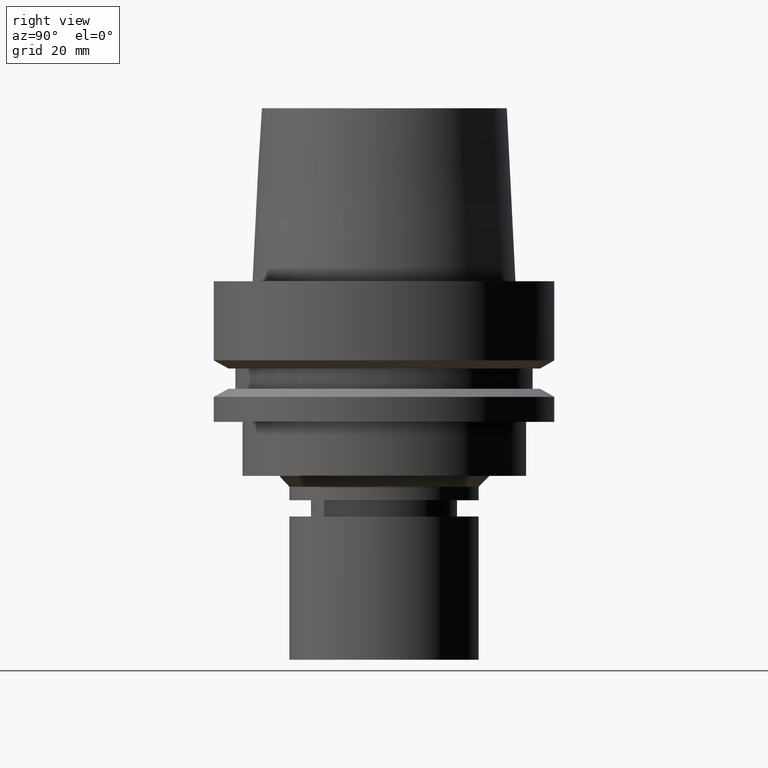
[diagram: clean part render]
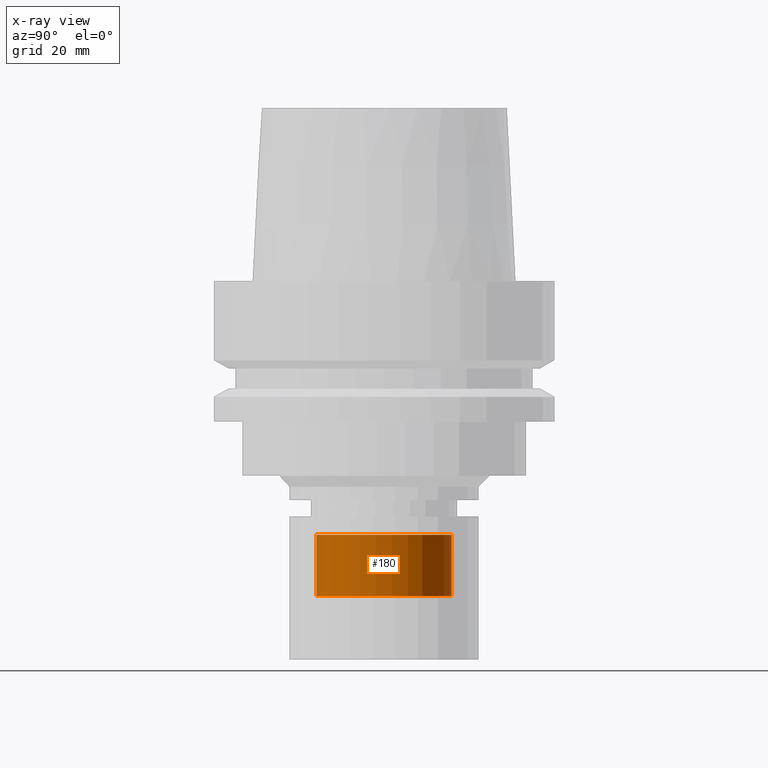
[diagram: x-ray — body ghosted, one internal face saturated and labeled with its STEP entity id]
A machine part, right view, then the same camera in x-ray: the body is ghosted and one INTERNAL B-rep face — a face not visible from any outside direction — is saturated and labeled: STEP entity #180.
In plain terms, the highlighted cylindrical surface (bore or boss wall) has radius 12.5 mm, axis along (-0, -0, 1).
Its self-contained STEP definition (entity closure, byte-faithful):
#93=EDGE_CURVE('Unnamed[1]',#239,#239,#240,.T.);
#154=EDGE_CURVE('Unnamed[1]',#332,#332,#333,.T.);
#180=ADVANCED_FACE('Unnamed[1]',(#372,#373),#374,.T.);
#239=VERTEX_POINT('',#443);
#240=CIRCLE('',#444,12.4999999999999);
#332=VERTEX_POINT('',#559);
#333=CIRCLE('',#560,12.4999999999998);
#372=FACE_BOUND('',#609,.T.);
#373=FACE_BOUND('',#610,.T.);
#374=CYLINDRICAL_SURFACE('',#611,12.4999999999999);
#443=CARTESIAN_POINT('',(2.87177685173178E-015,12.4999999999999,-46.8996751345975));
#444=AXIS2_PLACEMENT_3D('',#671,#672,#673);
#559=CARTESIAN_POINT('',(3.56952358917369E-015,12.4999999999998,-58.2947441116725));
#560=AXIS2_PLACEMENT_3D('',#774,#775,#776);
#609=EDGE_LOOP('',(#819));
#610=EDGE_LOOP('',(#820));
#611=AXIS2_PLACEMENT_3D('',#821,#822,#823);
#671=CARTESIAN_POINT('',(2.87177685173178E-015,5.74355370346355E-015,-46.8996751345975));
#672=DIRECTION('',(-6.12323399573677E-017,-1.22464679914735E-016,1.0));
#673=DIRECTION('',(-1.23259516440783E-032,1.0,1.22464679914735E-016));
#774=CARTESIAN_POINT('',(3.56952358917369E-015,7.13904717834738E-015,-58.2947441116725));
#775=DIRECTION('',(-6.12323399573677E-017,-1.22464679914735E-016,1.0));
#776=DIRECTION('',(-1.23259516440783E-032,1.0,1.22464679914735E-016));
#819=ORIENTED_EDGE('',*,*,#93,.F.);
#820=ORIENTED_EDGE('',*,*,#154,.T.);
#821=CARTESIAN_POINT('',(3.22065022045273E-015,6.44130044090546E-015,-52.597209623135));
#822=DIRECTION('',(-6.12323399573677E-017,-1.22464679914735E-016,1.0));
#823=DIRECTION('',(-1.23259516440783E-032,1.0,1.22464679914735E-016));